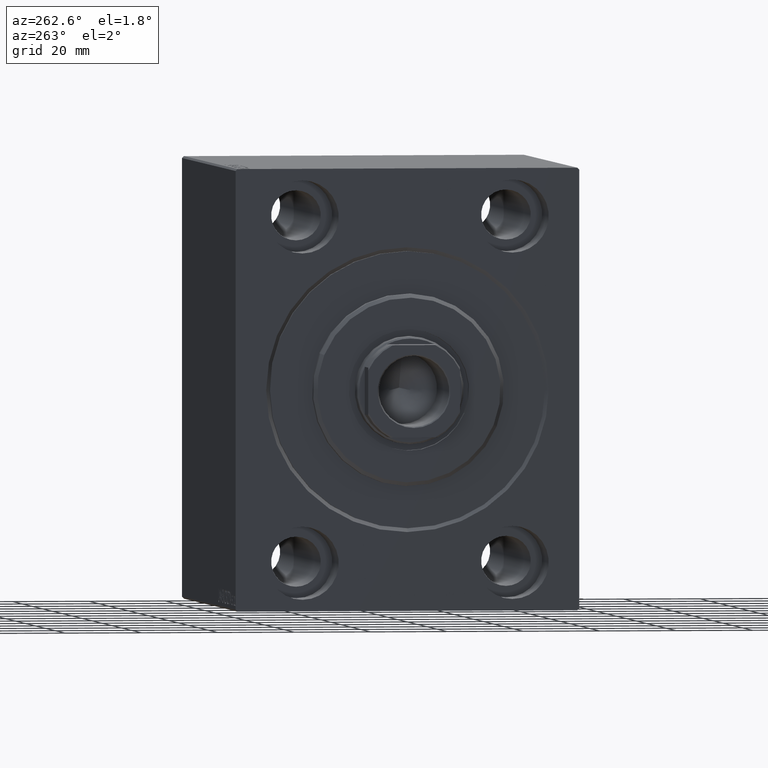
[diagram: clean part render]
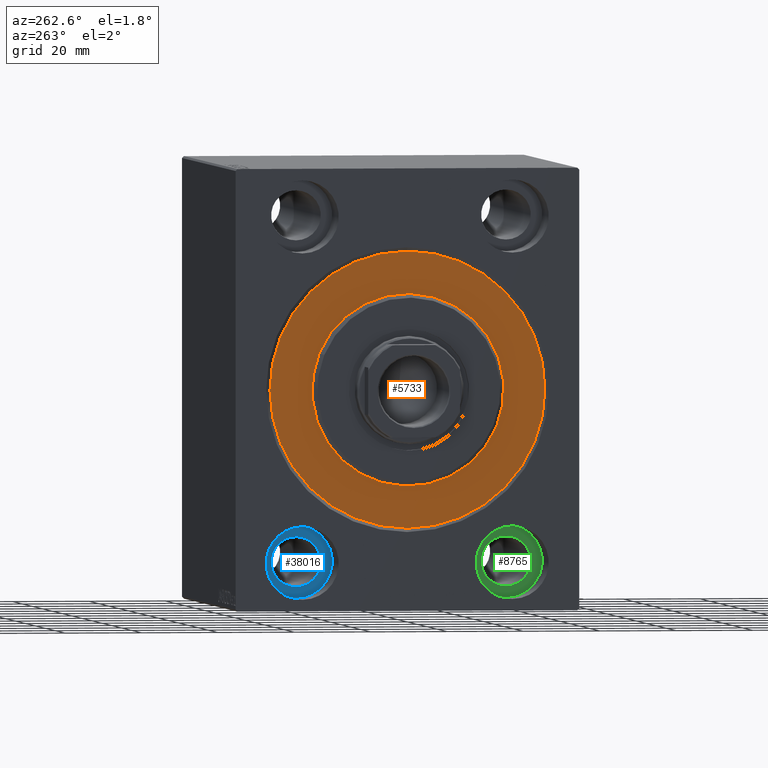
[diagram: same view with three faces highlighted in distinct colors, each labeled with its STEP entity id]
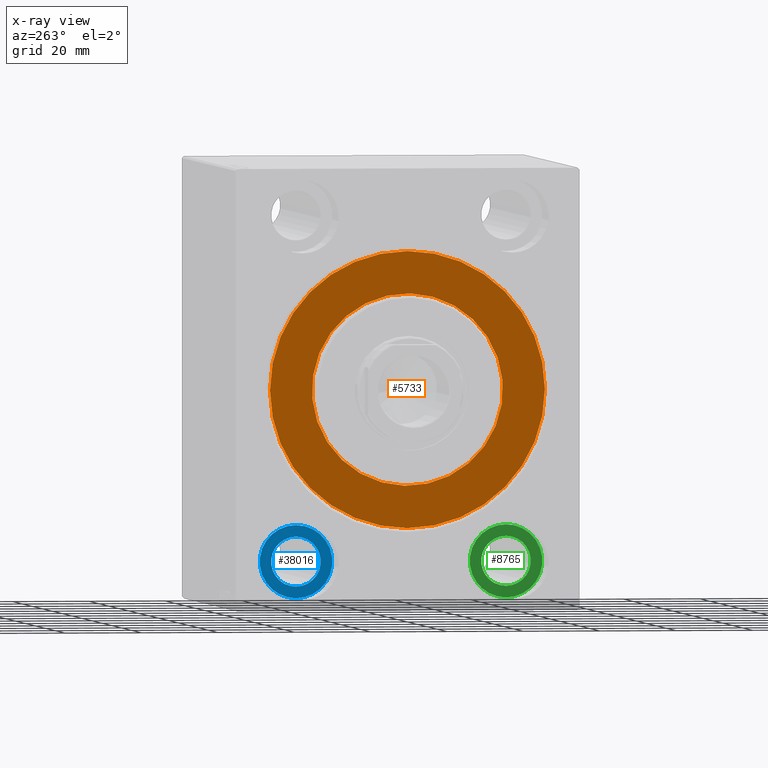
[diagram: x-ray of the same camera — body ghosted, the three highlighted faces saturated]
A machine part, auxiliary view with three faces highlighted in distinct colors.
The next image is the same camera in x-ray (body ghosted, the three faces saturated) — at least one of them is partly hidden behind the body in this view.
Their STEP definitions:

[orange] entity #5733 — the highlighted planar face has unit normal (1, 0, -0).
#200 = EDGE_CURVE ( 'NONE', #23336, #24051, #29141, .T. ) ;
#774 = DIRECTION ( 'NONE',  ( 0.000000000000000000, 0.000000000000000000, 1.000000000000000000 ) ) ;
#1358 = CARTESIAN_POINT ( 'NONE',  ( 0.000000000000000000, 0.000000000000000000, -36.00000000000000000 ) ) ;
#2087 = ORIENTED_EDGE ( 'NONE', *, *, #200, .F. ) ;
#2092 = DIRECTION ( 'NONE',  ( 0.000000000000000000, 0.000000000000000000, -1.000000000000000000 ) ) ;
#4137 = DIRECTION ( 'NONE',  ( 0.000000000000000000, 0.000000000000000000, -1.000000000000000000 ) ) ;
#4902 = AXIS2_PLACEMENT_3D ( 'NONE', #37375, #10774, #4137 ) ;
#5733 = ADVANCED_FACE ( 'NONE', ( #17824, #27135 ), #27799, .F. ) ;
#9341 = CARTESIAN_POINT ( 'NONE',  ( 0.000000000000000000, 0.000000000000000000, 0.000000000000000000 ) ) ;
#10260 = DIRECTION ( 'NONE',  ( -1.000000000000000000, 0.000000000000000000, 0.000000000000000000 ) ) ;
#10774 = DIRECTION ( 'NONE',  ( 1.000000000000000000, -0.000000000000000000, 0.000000000000000000 ) ) ;
#12350 = CIRCLE ( 'NONE', #19445, 36.00000000000000000 ) ;
#13502 = CARTESIAN_POINT ( 'NONE',  ( 0.000000000000000000, 3.061616997868383043E-15, -25.00000000000000000 ) ) ;
#13577 = AXIS2_PLACEMENT_3D ( 'NONE', #9341, #22862, #24382 ) ;
#14565 = CARTESIAN_POINT ( 'NONE',  ( 0.000000000000000000, 0.000000000000000000, 25.00000000000000000 ) ) ;
#15315 = ORIENTED_EDGE ( 'NONE', *, *, #33978, .F. ) ;
#17095 = EDGE_CURVE ( 'NONE', #23188, #17887, #35832, .T. ) ;
#17824 = FACE_BOUND ( 'NONE', #26970, .T. ) ;
#17887 = VERTEX_POINT ( 'NONE', #14565 ) ;
#18158 = AXIS2_PLACEMENT_3D ( 'NONE', #39953, #42622, #2092 ) ;
#18969 = ORIENTED_EDGE ( 'NONE', *, *, #25463, .F. ) ;
#19046 = CIRCLE ( 'NONE', #4902, 25.00000000000000000 ) ;
#19445 = AXIS2_PLACEMENT_3D ( 'NONE', #20891, #10260, #27319 ) ;
#20891 = CARTESIAN_POINT ( 'NONE',  ( 0.000000000000000000, 0.000000000000000000, 0.000000000000000000 ) ) ;
#22862 = DIRECTION ( 'NONE',  ( -1.000000000000000000, 0.000000000000000000, 0.000000000000000000 ) ) ;
#23188 = VERTEX_POINT ( 'NONE', #13502 ) ;
#23336 = VERTEX_POINT ( 'NONE', #29192 ) ;
#24051 = VERTEX_POINT ( 'NONE', #1358 ) ;
#24382 = DIRECTION ( 'NONE',  ( 0.000000000000000000, 0.000000000000000000, 1.000000000000000000 ) ) ;
#25463 = EDGE_CURVE ( 'NONE', #17887, #23188, #19046, .T. ) ;
#26970 = EDGE_LOOP ( 'NONE', ( #18969, #39091 ) ) ;
#27135 = FACE_OUTER_BOUND ( 'NONE', #37614, .T. ) ;
#27319 = DIRECTION ( 'NONE',  ( 0.000000000000000000, 0.000000000000000000, 1.000000000000000000 ) ) ;
#27799 = PLANE ( 'NONE',  #36339 ) ;
#29141 = CIRCLE ( 'NONE', #13577, 36.00000000000000000 ) ;
#29192 = CARTESIAN_POINT ( 'NONE',  ( 0.000000000000000000, 4.408728476930470856E-15, 36.00000000000000000 ) ) ;
#33978 = EDGE_CURVE ( 'NONE', #24051, #23336, #12350, .T. ) ;
#35832 = CIRCLE ( 'NONE', #18158, 25.00000000000000000 ) ;
#36339 = AXIS2_PLACEMENT_3D ( 'NONE', #40876, #37763, #774 ) ;
#37375 = CARTESIAN_POINT ( 'NONE',  ( 0.000000000000000000, 0.000000000000000000, 0.000000000000000000 ) ) ;
#37614 = EDGE_LOOP ( 'NONE', ( #15315, #2087 ) ) ;
#37763 = DIRECTION ( 'NONE',  ( -1.000000000000000000, 0.000000000000000000, 0.000000000000000000 ) ) ;
#39091 = ORIENTED_EDGE ( 'NONE', *, *, #17095, .F. ) ;
#39953 = CARTESIAN_POINT ( 'NONE',  ( 0.000000000000000000, 0.000000000000000000, 0.000000000000000000 ) ) ;
#40876 = CARTESIAN_POINT ( 'NONE',  ( 0.000000000000000000, 0.000000000000000000, 0.000000000000000000 ) ) ;
#42622 = DIRECTION ( 'NONE',  ( 1.000000000000000000, -0.000000000000000000, 0.000000000000000000 ) ) ;

[blue] entity #38016 — the highlighted planar face has unit normal (-1, 0, 0).
#92 = DIRECTION ( 'NONE',  ( -1.000000000000000000, 0.000000000000000000, 0.000000000000000000 ) ) ;
#1556 = DIRECTION ( 'NONE',  ( 0.000000000000000000, 0.000000000000000000, 1.000000000000000000 ) ) ;
#1945 = AXIS2_PLACEMENT_3D ( 'NONE', #34747, #41844, #7510 ) ;
#2675 = CARTESIAN_POINT ( 'NONE',  ( 13.00000000000000000, 27.49999999999998934, -35.49999999999998579 ) ) ;
#3360 = CIRCLE ( 'NONE', #1945, 6.499999999999999112 ) ;
#3377 = EDGE_CURVE ( 'NONE', #41589, #18602, #3737, .T. ) ;
#3737 = CIRCLE ( 'NONE', #8701, 6.499999999999999112 ) ;
#3753 = ORIENTED_EDGE ( 'NONE', *, *, #3377, .F. ) ;
#4291 = VERTEX_POINT ( 'NONE', #2675 ) ;
#4913 = FACE_BOUND ( 'NONE', #34335, .T. ) ;
#5126 = DIRECTION ( 'NONE',  ( -1.000000000000000000, 0.000000000000000000, 0.000000000000000000 ) ) ;
#6595 = EDGE_LOOP ( 'NONE', ( #15319, #11692 ) ) ;
#6880 = VERTEX_POINT ( 'NONE', #30843 ) ;
#7510 = DIRECTION ( 'NONE',  ( 0.000000000000000000, 0.000000000000000000, 1.000000000000000000 ) ) ;
#8236 = AXIS2_PLACEMENT_3D ( 'NONE', #21973, #5126, #32144 ) ;
#8261 = CARTESIAN_POINT ( 'NONE',  ( 12.99999999999999822, 27.49999999999998934, -38.49999999999998579 ) ) ;
#8701 = AXIS2_PLACEMENT_3D ( 'NONE', #37376, #24739, #20755 ) ;
#11692 = ORIENTED_EDGE ( 'NONE', *, *, #39026, .T. ) ;
#15319 = ORIENTED_EDGE ( 'NONE', *, *, #35177, .T. ) ;
#16016 = AXIS2_PLACEMENT_3D ( 'NONE', #31674, #25469, #1556 ) ;
#18427 = FACE_OUTER_BOUND ( 'NONE', #6595, .T. ) ;
#18602 = VERTEX_POINT ( 'NONE', #8261 ) ;
#19474 = CIRCLE ( 'NONE', #37843, 9.500000000000001776 ) ;
#20120 = EDGE_CURVE ( 'NONE', #18602, #41589, #3360, .T. ) ;
#20755 = DIRECTION ( 'NONE',  ( 0.000000000000000000, 0.000000000000000000, 1.000000000000000000 ) ) ;
#21113 = CARTESIAN_POINT ( 'NONE',  ( 12.99999999999999822, 27.49999999999998934, -51.49999999999998579 ) ) ;
#21973 = CARTESIAN_POINT ( 'NONE',  ( 13.00000000000000000, 27.49999999999998934, -44.99999999999998579 ) ) ;
#23084 = CIRCLE ( 'NONE', #16016, 9.500000000000001776 ) ;
#24739 = DIRECTION ( 'NONE',  ( -1.000000000000000000, 0.000000000000000000, 0.000000000000000000 ) ) ;
#25469 = DIRECTION ( 'NONE',  ( -1.000000000000000000, 0.000000000000000000, 0.000000000000000000 ) ) ;
#30215 = DIRECTION ( 'NONE',  ( 0.000000000000000000, 0.000000000000000000, 1.000000000000000000 ) ) ;
#30843 = CARTESIAN_POINT ( 'NONE',  ( 13.00000000000000000, 27.49999999999998934, -54.49999999999998579 ) ) ;
#31276 = ORIENTED_EDGE ( 'NONE', *, *, #20120, .F. ) ;
#31674 = CARTESIAN_POINT ( 'NONE',  ( 13.00000000000000000, 27.49999999999998934, -44.99999999999998579 ) ) ;
#31928 = PLANE ( 'NONE',  #8236 ) ;
#32144 = DIRECTION ( 'NONE',  ( 0.000000000000000000, 0.000000000000000000, 1.000000000000000000 ) ) ;
#34335 = EDGE_LOOP ( 'NONE', ( #31276, #3753 ) ) ;
#34747 = CARTESIAN_POINT ( 'NONE',  ( 12.99999999999999822, 27.49999999999998934, -44.99999999999998579 ) ) ;
#35177 = EDGE_CURVE ( 'NONE', #4291, #6880, #19474, .T. ) ;
#37376 = CARTESIAN_POINT ( 'NONE',  ( 12.99999999999999822, 27.49999999999998934, -44.99999999999998579 ) ) ;
#37843 = AXIS2_PLACEMENT_3D ( 'NONE', #40416, #92, #30215 ) ;
#38016 = ADVANCED_FACE ( 'NONE', ( #4913, #18427 ), #31928, .T. ) ;
#39026 = EDGE_CURVE ( 'NONE', #6880, #4291, #23084, .T. ) ;
#40416 = CARTESIAN_POINT ( 'NONE',  ( 13.00000000000000000, 27.49999999999998934, -44.99999999999998579 ) ) ;
#41589 = VERTEX_POINT ( 'NONE', #21113 ) ;
#41844 = DIRECTION ( 'NONE',  ( -1.000000000000000000, 0.000000000000000000, 0.000000000000000000 ) ) ;

[green] entity #8765 — the highlighted planar face has unit normal (-1, 0, 0).
#2310 = DIRECTION ( 'NONE',  ( 0.000000000000000000, 0.000000000000000000, 1.000000000000000000 ) ) ;
#2791 = VERTEX_POINT ( 'NONE', #28002 ) ;
#3066 = DIRECTION ( 'NONE',  ( -1.000000000000000000, 0.000000000000000000, 0.000000000000000000 ) ) ;
#5576 = EDGE_LOOP ( 'NONE', ( #9722, #29926 ) ) ;
#6662 = ORIENTED_EDGE ( 'NONE', *, *, #30605, .T. ) ;
#6878 = FACE_OUTER_BOUND ( 'NONE', #31282, .T. ) ;
#8106 = AXIS2_PLACEMENT_3D ( 'NONE', #35756, #25568, #2310 ) ;
#8765 = ADVANCED_FACE ( 'NONE', ( #32644, #6878 ), #15604, .T. ) ;
#9722 = ORIENTED_EDGE ( 'NONE', *, *, #25162, .F. ) ;
#10588 = VERTEX_POINT ( 'NONE', #38091 ) ;
#12537 = AXIS2_PLACEMENT_3D ( 'NONE', #43615, #3066, #16578 ) ;
#13614 = CARTESIAN_POINT ( 'NONE',  ( 12.99999999999999822, -27.50000000000000000, -38.49999999999998579 ) ) ;
#14610 = DIRECTION ( 'NONE',  ( 0.000000000000000000, 0.000000000000000000, 1.000000000000000000 ) ) ;
#15604 = PLANE ( 'NONE',  #8106 ) ;
#16069 = CARTESIAN_POINT ( 'NONE',  ( 13.00000000000000000, -27.50000000000000000, -54.49999999999998579 ) ) ;
#16578 = DIRECTION ( 'NONE',  ( 0.000000000000000000, 0.000000000000000000, 1.000000000000000000 ) ) ;
#19071 = AXIS2_PLACEMENT_3D ( 'NONE', #25976, #42604, #19999 ) ;
#19999 = DIRECTION ( 'NONE',  ( 0.000000000000000000, 0.000000000000000000, 1.000000000000000000 ) ) ;
#20378 = CIRCLE ( 'NONE', #26821, 6.499999999999999112 ) ;
#21895 = CIRCLE ( 'NONE', #19071, 9.500000000000001776 ) ;
#22384 = DIRECTION ( 'NONE',  ( -1.000000000000000000, 0.000000000000000000, 0.000000000000000000 ) ) ;
#23180 = CIRCLE ( 'NONE', #12537, 6.499999999999999112 ) ;
#23349 = ORIENTED_EDGE ( 'NONE', *, *, #31817, .T. ) ;
#24581 = CARTESIAN_POINT ( 'NONE',  ( 13.00000000000000000, -27.50000000000000000, -44.99999999999998579 ) ) ;
#25162 = EDGE_CURVE ( 'NONE', #27298, #10588, #20378, .T. ) ;
#25568 = DIRECTION ( 'NONE',  ( -1.000000000000000000, 0.000000000000000000, 0.000000000000000000 ) ) ;
#25976 = CARTESIAN_POINT ( 'NONE',  ( 13.00000000000000000, -27.50000000000000000, -44.99999999999998579 ) ) ;
#26821 = AXIS2_PLACEMENT_3D ( 'NONE', #35897, #22384, #39441 ) ;
#26884 = AXIS2_PLACEMENT_3D ( 'NONE', #24581, #31430, #14610 ) ;
#27152 = VERTEX_POINT ( 'NONE', #16069 ) ;
#27298 = VERTEX_POINT ( 'NONE', #13614 ) ;
#28002 = CARTESIAN_POINT ( 'NONE',  ( 13.00000000000000000, -27.50000000000000000, -35.49999999999998579 ) ) ;
#29926 = ORIENTED_EDGE ( 'NONE', *, *, #41167, .F. ) ;
#30605 = EDGE_CURVE ( 'NONE', #2791, #27152, #21895, .T. ) ;
#31282 = EDGE_LOOP ( 'NONE', ( #6662, #23349 ) ) ;
#31430 = DIRECTION ( 'NONE',  ( -1.000000000000000000, 0.000000000000000000, 0.000000000000000000 ) ) ;
#31817 = EDGE_CURVE ( 'NONE', #27152, #2791, #39627, .T. ) ;
#32644 = FACE_BOUND ( 'NONE', #5576, .T. ) ;
#35756 = CARTESIAN_POINT ( 'NONE',  ( 13.00000000000000000, 0.000000000000000000, 0.000000000000000000 ) ) ;
#35897 = CARTESIAN_POINT ( 'NONE',  ( 12.99999999999999822, -27.50000000000000000, -44.99999999999998579 ) ) ;
#38091 = CARTESIAN_POINT ( 'NONE',  ( 12.99999999999999822, -27.50000000000000000, -51.49999999999998579 ) ) ;
#39441 = DIRECTION ( 'NONE',  ( 0.000000000000000000, 0.000000000000000000, 1.000000000000000000 ) ) ;
#39627 = CIRCLE ( 'NONE', #26884, 9.500000000000001776 ) ;
#41167 = EDGE_CURVE ( 'NONE', #10588, #27298, #23180, .T. ) ;
#42604 = DIRECTION ( 'NONE',  ( -1.000000000000000000, 0.000000000000000000, 0.000000000000000000 ) ) ;
#43615 = CARTESIAN_POINT ( 'NONE',  ( 12.99999999999999822, -27.50000000000000000, -44.99999999999998579 ) ) ;